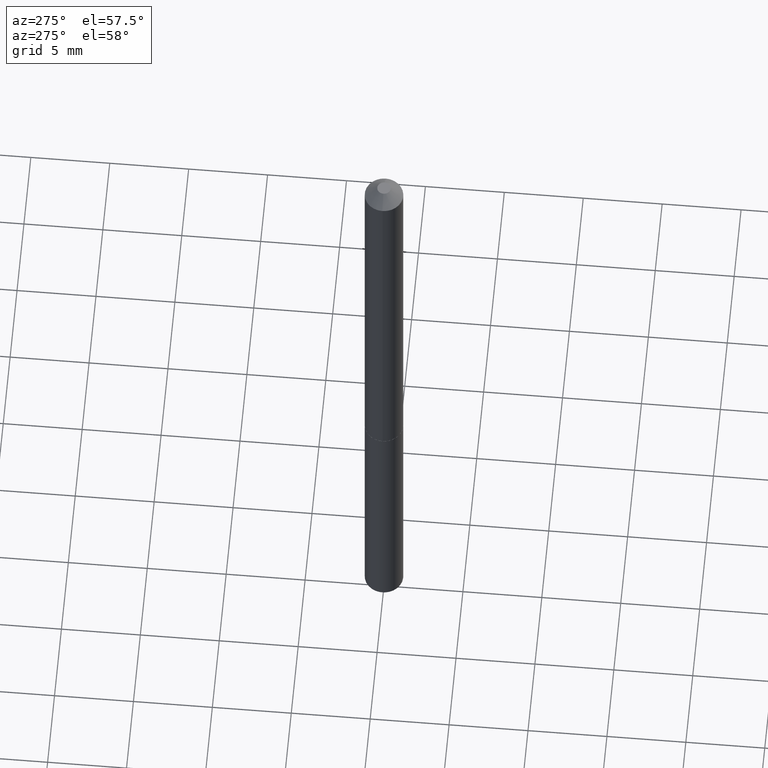
[diagram: clean part render]
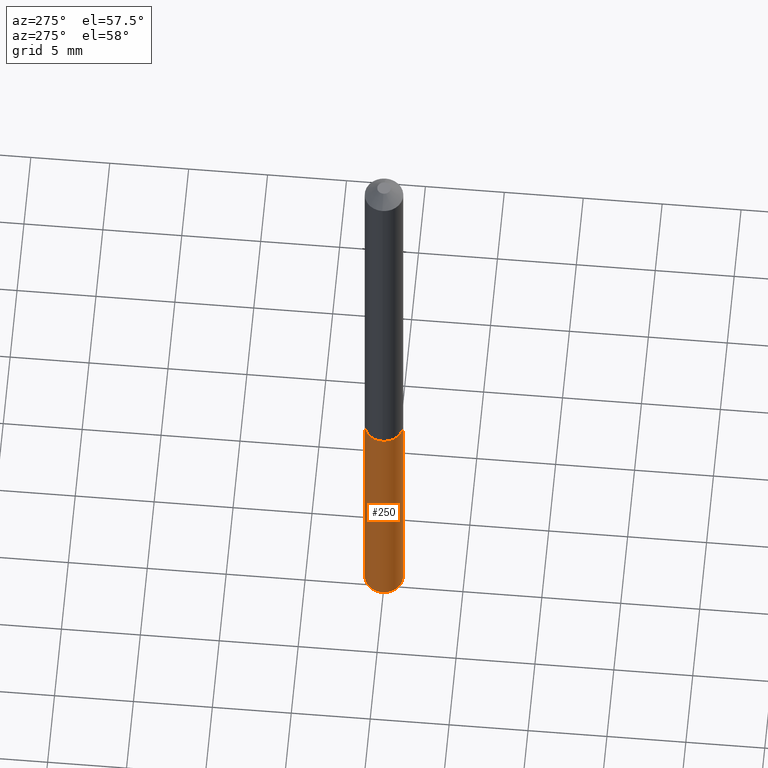
[diagram: same view with one face highlighted and labeled with its STEP entity id]
A machine part, auxiliary view. The second image highlights one B-rep face of the part: STEP entity #250.
In plain terms, the highlighted cylindrical surface (edge-blend (fillet) strip) has radius 1.2192 mm, axis along (-0, 0, 1).
Its self-contained STEP definition (entity closure, byte-faithful):
#29 = DIRECTION ( 'NONE',  ( -6.982962677686265922E-15, -1.000000000000000000, 2.845674993400273939E-15 ) ) ;
#34 = CIRCLE ( 'NONE', #290, 0.04800000000000000100 ) ;
#35 = CARTESIAN_POINT ( 'NONE',  ( 3.410605131648921246E-16, 0.04799999999999618461, -1.096000000000000307 ) ) ;
#38 = ORIENTED_EDGE ( 'NONE', *, *, #365, .F. ) ;
#42 = CIRCLE ( 'NONE', #118, 0.04800000000000000100 ) ;
#47 = EDGE_CURVE ( 'NONE', #161, #200, #374, .T. ) ;
#66 = VERTEX_POINT ( 'NONE', #234 ) ;
#76 = FACE_OUTER_BOUND ( 'NONE', #156, .T. ) ;
#86 = VECTOR ( 'NONE', #260, 39.37007874015748143 ) ;
#94 = ORIENTED_EDGE ( 'NONE', *, *, #316, .T. ) ;
#114 = DIRECTION ( 'NONE',  ( -6.982962677686265922E-15, -1.000000000000000000, 5.691349986800547879E-15 ) ) ;
#118 = AXIS2_PLACEMENT_3D ( 'NONE', #385, #231, #114 ) ;
#134 = AXIS2_PLACEMENT_3D ( 'NONE', #358, #199, #355 ) ;
#143 = EDGE_CURVE ( 'NONE', #161, #279, #42, .T. ) ;
#156 = EDGE_LOOP ( 'NONE', ( #220, #345, #94, #38 ) ) ;
#161 = VERTEX_POINT ( 'NONE', #186 ) ;
#179 = VECTOR ( 'NONE', #320, 39.37007874015748143 ) ;
#186 = CARTESIAN_POINT ( 'NONE',  ( 3.410605131648918288E-16, 0.04799999999999372130, -1.795029428755222645 ) ) ;
#199 = DIRECTION ( 'NONE',  ( -2.445478307007458398E-29, 3.491467733124827463E-15, 1.000000000000000000 ) ) ;
#200 = VERTEX_POINT ( 'NONE', #35 ) ;
#205 = CARTESIAN_POINT ( 'NONE',  ( -3.351822085288967856E-16, -0.04800000000000624600, -1.795029428755222201 ) ) ;
#220 = ORIENTED_EDGE ( 'NONE', *, *, #47, .F. ) ;
#231 = DIRECTION ( 'NONE',  ( -2.445478307007458398E-29, 3.491467733124827463E-15, 1.000000000000000000 ) ) ;
#234 = CARTESIAN_POINT ( 'NONE',  ( -3.351822085289139434E-16, -0.04800000000000382433, -1.096000000000000085 ) ) ;
#250 = ADVANCED_FACE ( 'NONE', ( #76 ), #271, .T. ) ;
#260 = DIRECTION ( 'NONE',  ( -2.445478307007458398E-29, 3.491467733124827463E-15, 1.000000000000000000 ) ) ;
#267 = LINE ( 'NONE', #326, #86 ) ;
#271 = CYLINDRICAL_SURFACE ( 'NONE', #134, 0.04800000000000000100 ) ;
#279 = VERTEX_POINT ( 'NONE', #205 ) ;
#290 = AXIS2_PLACEMENT_3D ( 'NONE', #298, #382, #29 ) ;
#298 = CARTESIAN_POINT ( 'NONE',  ( 2.680233811578910199E-29, -3.826663547372088073E-15, -1.096000000000000085 ) ) ;
#316 = EDGE_CURVE ( 'NONE', #279, #66, #267, .T. ) ;
#320 = DIRECTION ( 'NONE',  ( -2.445478307007458398E-29, 3.491467733124827463E-15, 1.000000000000000000 ) ) ;
#326 = CARTESIAN_POINT ( 'NONE',  ( -3.351822085289139434E-16, -0.04800000000000382433, -1.096000000000000085 ) ) ;
#345 = ORIENTED_EDGE ( 'NONE', *, *, #143, .T. ) ;
#355 = DIRECTION ( 'NONE',  ( -6.982962677686265922E-15, -1.000000000000000000, 2.845674993400273939E-15 ) ) ;
#358 = CARTESIAN_POINT ( 'NONE',  ( 2.680233811578910199E-29, -3.826663547372088073E-15, -1.096000000000000085 ) ) ;
#365 = EDGE_CURVE ( 'NONE', #200, #66, #34, .T. ) ;
#373 = CARTESIAN_POINT ( 'NONE',  ( 3.410605131648748190E-16, 0.04799999999999617073, -1.096000000000000307 ) ) ;
#374 = LINE ( 'NONE', #373, #179 ) ;
#382 = DIRECTION ( 'NONE',  ( -2.445478307007458398E-29, 3.491467733124827463E-15, 1.000000000000000000 ) ) ;
#385 = CARTESIAN_POINT ( 'NONE',  ( 4.389695115559621699E-29, -6.267302242375627291E-15, -1.795029428755222423 ) ) ;